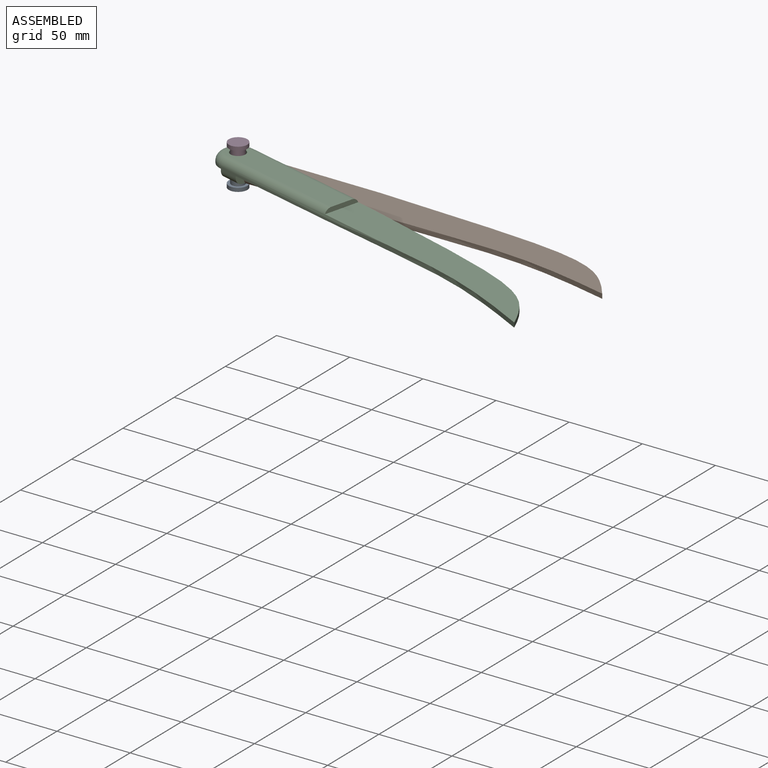
[diagram: assembled view]
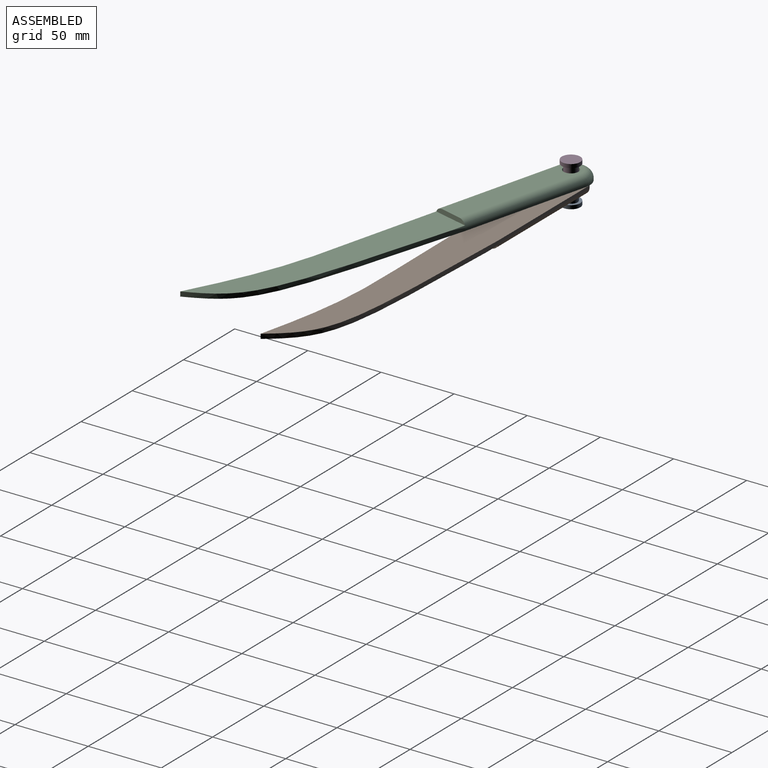
[diagram: assembled view, second angle]
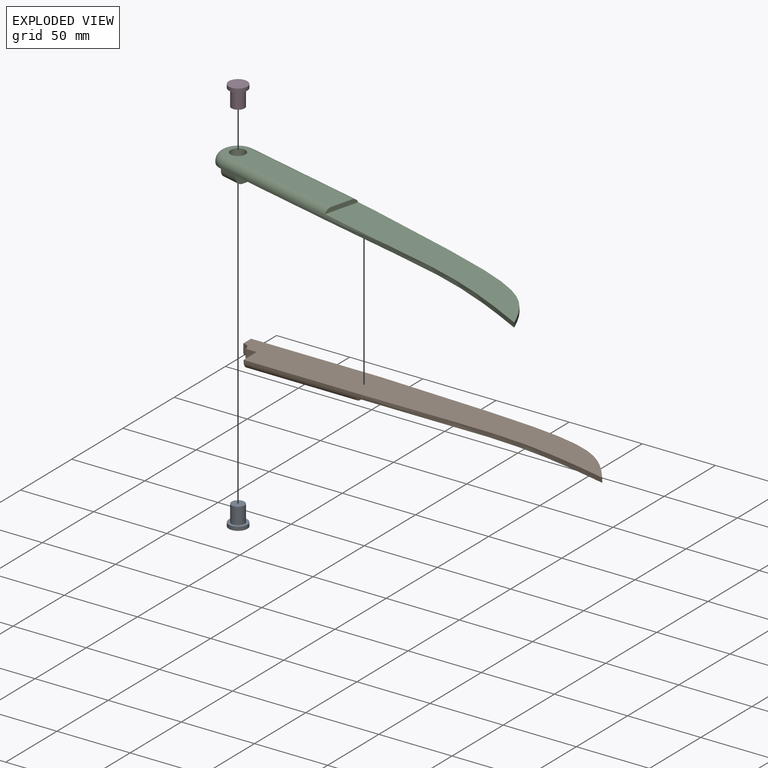
[diagram: exploded view]
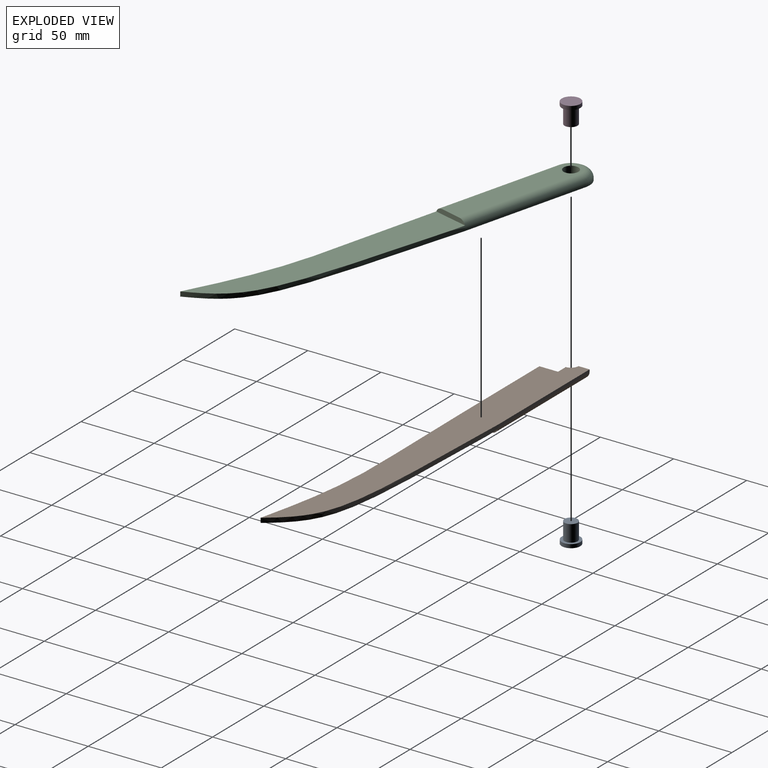
[diagram: exploded view, second angle]
ASSEMBLY  parts=4 mates=3
PART A: 5 faces, bbox 12.7x12.7x14 mm
  f0: cylinder r=4.45mm len=11.43mm, axis (0,0,-1), area 319.2mm2, adj f1,f4
  f1: plane 8.89x8.89mm, normal (0,0,-1), area 62.1mm2, adj f0
  f2: cylinder r=6.35mm len=12.7mm, axis (0,0,-1), area 101.3mm2, adj f3,f4
  f3: plane 12.7x12.7mm, normal (0,0,1), area 126.7mm2, adj f2
  f4: plane 12.7x12.7mm, normal (0,0,-1), area 64.6mm2, adj f0,f2
PART B: 14 faces, bbox 266.7x38.1x6.4 mm
  f0: plane 12.7x6.35mm, normal (1,0,0), area 75.1mm2, adj f3,f4,f5,f8,f13
  f1: plane 88.9x1.27mm, normal (0,1,0), area 112.9mm2, adj f5,f7,f10,f12
  f2: plane 24.66x3.18mm, normal (-1,0,0), area 70mm2, adj f4,f11,f12,f13
  f3: plane 76.2x1.27mm, normal (0,-1,0), area 96.8mm2, adj f0,f5,f9,f13
  f4: plane 88.9x15.24mm, normal (0,0,1), area 1237.8mm2, adj f0,f2,f6,f7,f8,f12,f13
  f5: plane 266.7x38.1mm, normal (0,0,-1), area 5741.1mm2, adj f0,f1,f3,f6,f7,f8,f9,f10
  f6: cylinder r=5.08mm len=6.35mm, axis (0,0,-1), area 50.7mm2, adj f4,f5,f7,f8
  f7: plane 7.62x6.35mm, normal (1,0,0), area 42.8mm2, adj f1,f4,f5,f6,f12
  f8: plane 7.62x6.35mm, normal (0,-1,0), area 48.4mm2, adj f0,f4,f5,f6
  f9: extruded ~177.8x13.27mm, area 513.1mm2, adj f3,f5,f10,f11,f13
  f10: extruded ~177.8x38.1mm, area 588.7mm2, adj f1,f5,f9,f11,f12
  f11: plane 177.8x38.1mm, normal (0,0,1), area 3648.8mm2, adj f2,f9,f10,f12,f13
  f12: cylinder r=5.08mm len=99.97mm, axis (1,0,0), area 720.2mm2, adj f1,f2,f4,f7,f10,f11
  f13: cylinder r=5.08mm len=129.17mm, axis (-1,0,0), area 659.8mm2, adj f0,f2,f3,f4,f9,f11
PART C: 18 faces, bbox 280.4x39.1x12.7 mm
  f0: plane 7.62x6.35mm, normal (0,1,0), area 48.4mm2, adj f1,f4,f5,f10
  f1: plane 12.7x6.35mm, normal (-1,0,0), area 75.1mm2, adj f0,f2,f5,f10,f17
  f2: plane 88.9x2.54mm, normal (0,-1,0), area 129mm2, adj f1,f3,f7,f10,f11,f14,f17
  f3: plane 7.62x6.35mm, normal (1,0,0), area 42.8mm2, adj f2,f4,f5,f10,f17
  f4: cylinder r=5.08mm len=12.7mm, axis (0,0,-1), area 253.4mm2, adj f0,f3,f5,f6,f10
  f5: plane 12.7x7.62mm, normal (0,0,1), area 76.5mm2, adj f0,f1,f3,f4,f17
  f6: plane 96.52x15.24mm, normal (0,0,-1), area 1365mm2, adj f4,f9,f14,f15,f16
  f7: cylinder r=12.7mm len=25.4mm, axis (0,0,1), area 50.7mm2, adj f2,f8,f10,f15
  f8: plane 88.9x1.27mm, normal (0,1,0), area 112.9mm2, adj f7,f10,f12,f16
  f9: plane 24.66x3.18mm, normal (-1,0,0), area 70mm2, adj f6,f13,f14,f16
  f10: plane 279.4x38.1mm, normal (0,0,1), area 5953.9mm2, adj f0,f1,f2,f3,f4,f7,f8,f11
  f11: extruded ~177.8x13.27mm, area 513.1mm2, adj f2,f10,f12,f13,f14
  f12: extruded ~177.8x38.1mm, area 588.7mm2, adj f8,f10,f11,f13,f16
  f13: plane 177.8x38.1mm, normal (0,0,-1), area 3648.8mm2, adj f9,f11,f12,f14,f16
  f14: cylinder r=5.08mm len=141.87mm, axis (1,0,0), area 761.1mm2, adj f2,f6,f9,f11,f13,f15
  f15: torus R=7.62mm, axis (0,0,1), area 272.1mm2, adj f6,f7,f14,f16
  f16: cylinder r=5.08mm len=99.97mm, axis (1,0,0), area 720.2mm2, adj f6,f8,f9,f12,f13,f15
  f17: cylinder r=5.08mm len=12.7mm, axis (-1,0,0), area 101.3mm2, adj f1,f2,f3,f5
PART D: same geometry as A
PLACE A rot(axis=(-0.12,-0.99,0),180deg) t=(-17.28,-27.1,6.74)mm
PLACE B rot(axis=(0,-1,0),180deg) t=(27.9,-40.06,8.01)mm fixed
PLACE C rot(axis=(-0.12,-0.99,0),180deg) t=(23.29,-50.82,8.01)mm
PLACE D rot(axis=(0,0,-1),14.3deg) t=(-17.28,-27.1,6.74)mm
MATE fastened D.f0 <-> A.f0  axis (0,0,-1) through (-17.28,-27.1,6.74)mm
MATE fastened D.f2 <-> C.f4  axis (0,0,1) through (-17.28,-27.1,20.71)mm
MATE revolute B.f6 <-> C.f4  axis (0,0,1) through (-17.28,-27.1,8.01)mm
